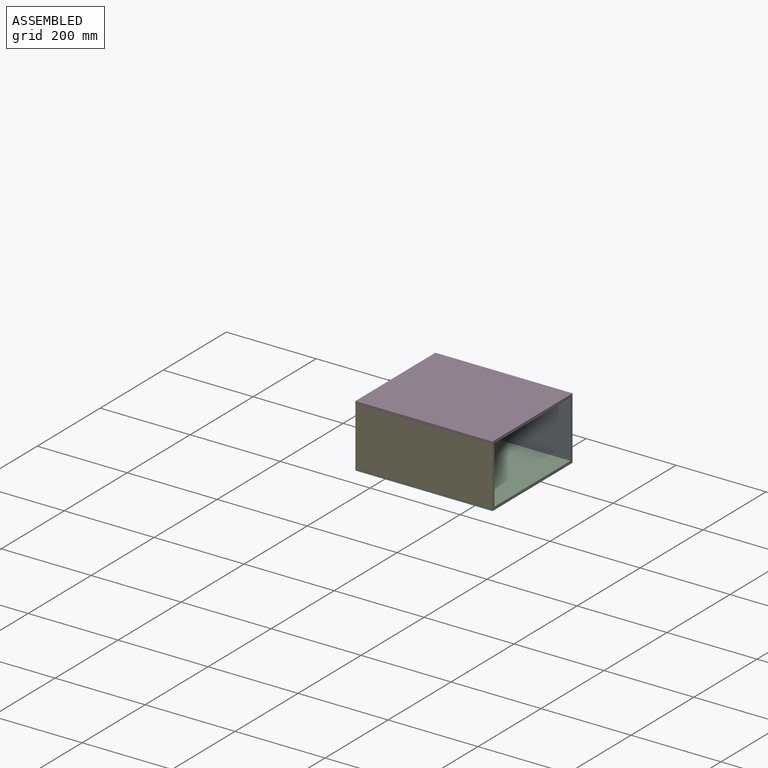
[diagram: assembled view]
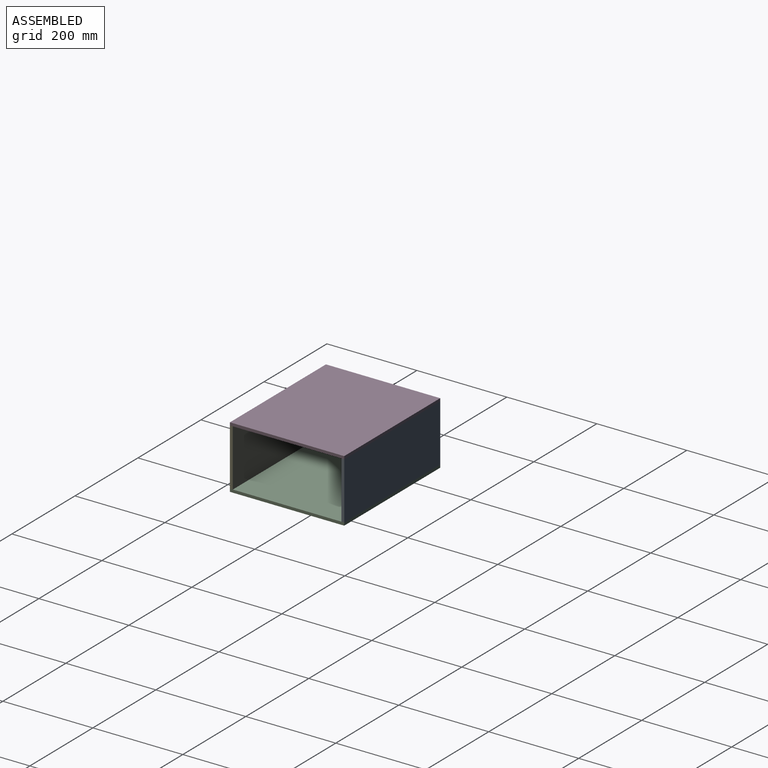
[diagram: assembled view, second angle]
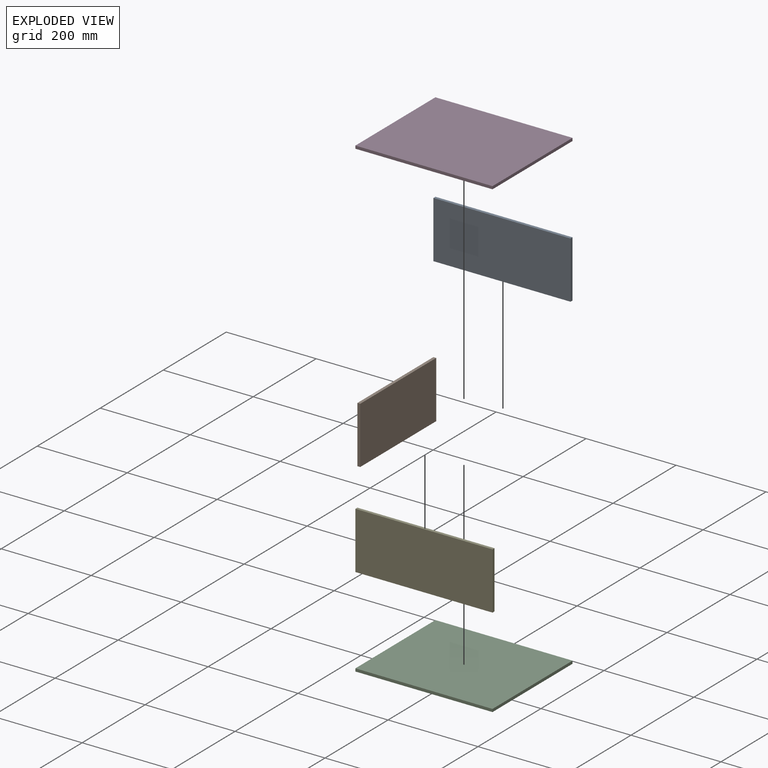
[diagram: exploded view]
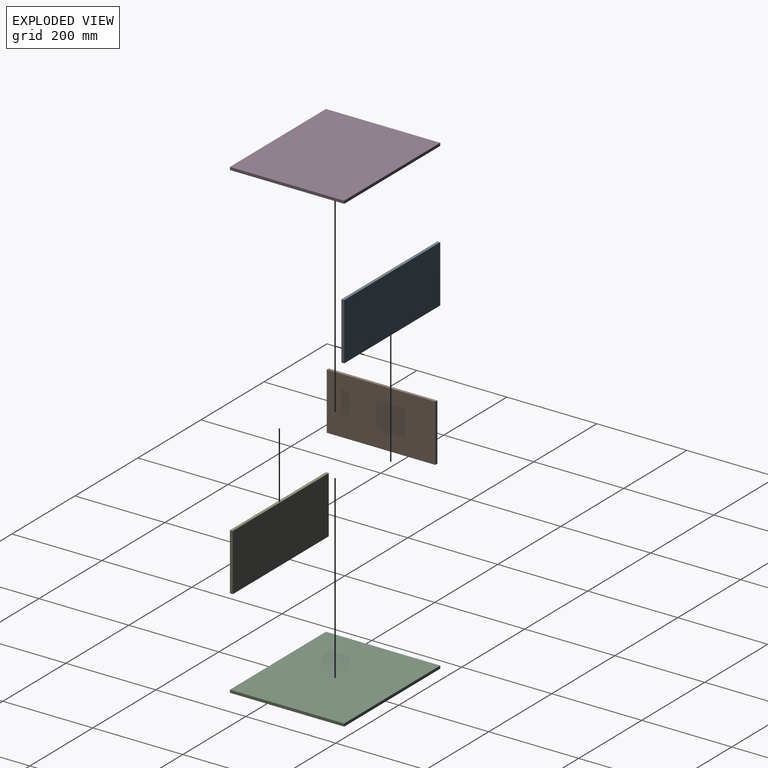
[diagram: exploded view, second angle]
ASSEMBLY  parts=5 mates=12
PART A: 6 faces, bbox 304.8x6.4x127 mm
  f0: plane 304.8x6.35mm, normal (0,0,1), area 1935.5mm2, adj f1,f3,f4,f5
  f1: plane 127x6.35mm, normal (-1,0,0), area 806.5mm2, adj f0,f2,f4,f5
  f2: plane 304.8x6.35mm, normal (0,0,-1), area 1935.5mm2, adj f1,f3,f4,f5
  f3: plane 127x6.35mm, normal (1,0,0), area 806.5mm2, adj f0,f2,f4,f5
  f4: plane 304.8x127mm, normal (0,-1,0), area 38709.6mm2, adj f0,f1,f2,f3
  f5: plane 304.8x127mm, normal (0,1,0), area 38709.6mm2, adj f0,f1,f2,f3
PART B: 6 faces, bbox 6.4x241.3x127 mm
  f0: plane 241.3x6.35mm, normal (0,0,1), area 1532.3mm2, adj f2,f3,f4,f5
  f1: plane 241.3x6.35mm, normal (0,0,-1), area 1532.3mm2, adj f2,f3,f4,f5
  f2: plane 241.3x127mm, normal (1,0,0), area 30645.1mm2, adj f0,f1,f4,f5
  f3: plane 241.3x127mm, normal (-1,0,0), area 30645.1mm2, adj f0,f1,f4,f5
  f4: plane 127x6.35mm, normal (0,1,0), area 806.5mm2, adj f0,f1,f2,f3
  f5: plane 127x6.35mm, normal (0,-1,0), area 806.5mm2, adj f0,f1,f2,f3
PART C: 6 faces, bbox 304.8x254x6.4 mm
  f0: plane 304.8x6.35mm, normal (0,1,0), area 1935.5mm2, adj f1,f3,f4,f5
  f1: plane 254x6.35mm, normal (-1,0,0), area 1612.9mm2, adj f0,f2,f4,f5
  f2: plane 304.8x6.35mm, normal (0,-1,0), area 1935.5mm2, adj f1,f3,f4,f5
  f3: plane 254x6.35mm, normal (1,0,0), area 1612.9mm2, adj f0,f2,f4,f5
  f4: plane 304.8x254mm, normal (0,0,1), area 77419.2mm2, adj f0,f1,f2,f3
  f5: plane 304.8x254mm, normal (0,0,-1), area 77419.2mm2, adj f0,f1,f2,f3
PART D: 6 faces, bbox 254x304.8x6.4 mm
  f0: plane 254x6.35mm, normal (0,1,0), area 1612.9mm2, adj f1,f3,f4,f5
  f1: plane 304.8x6.35mm, normal (-1,0,0), area 1935.5mm2, adj f0,f2,f4,f5
  f2: plane 254x6.35mm, normal (0,-1,0), area 1612.9mm2, adj f1,f3,f4,f5
  f3: plane 304.8x6.35mm, normal (1,0,0), area 1935.5mm2, adj f0,f2,f4,f5
  f4: plane 304.8x254mm, normal (0,0,-1), area 77419.2mm2, adj f0,f1,f2,f3
  f5: plane 304.8x254mm, normal (0,0,1), area 77419.2mm2, adj f0,f1,f2,f3
PART E: same geometry as A
PLACE A t=(-239.4,379.76,41.49)mm
PLACE B t=(-360.58,279.59,32.21)mm
PLACE C t=(-183.63,256.45,25.86)mm
PLACE D rot(axis=(0,0,-1),90deg) t=(-319.9,88.08,159.21)mm
PLACE E t=(-239.4,132.11,41.49)mm
MATE planar A.f2 <-> C.f4  axis (0,0,-1) through (-208.18,376.58,32.21)mm
MATE planar D.f4 <-> E.f0  axis (0,0,-1) through (-208.18,252.76,159.21)mm
MATE planar D.f3 <-> E.f4  axis (0,-1,0) through (-208.18,125.76,162.38)mm
MATE planar B.f3 <-> C.f1  axis (-1,0,0) through (-360.58,252.76,95.71)mm
MATE planar A.f1 <-> C.f1  axis (-1,0,0) through (-360.58,376.58,95.71)mm
MATE planar D.f2 <-> B.f3  axis (-1,0,0) through (-360.58,252.76,162.38)mm
MATE planar E.f4 <-> C.f2  axis (0,-1,0) through (-208.18,125.76,95.71)mm
MATE planar E.f1 <-> C.f1  axis (-1,0,0) through (-360.58,128.93,95.71)mm
MATE planar B.f4 <-> A.f4  axis (0,1,0) through (-357.4,373.41,95.71)mm
MATE planar B.f1 <-> C.f4  axis (0,0,-1) through (-357.4,252.76,32.21)mm
MATE planar E.f2 <-> C.f4  axis (0,0,-1) through (-208.18,128.93,32.21)mm
MATE planar A.f5 <-> C.f0  axis (0,1,0) through (-208.18,379.76,95.71)mm
